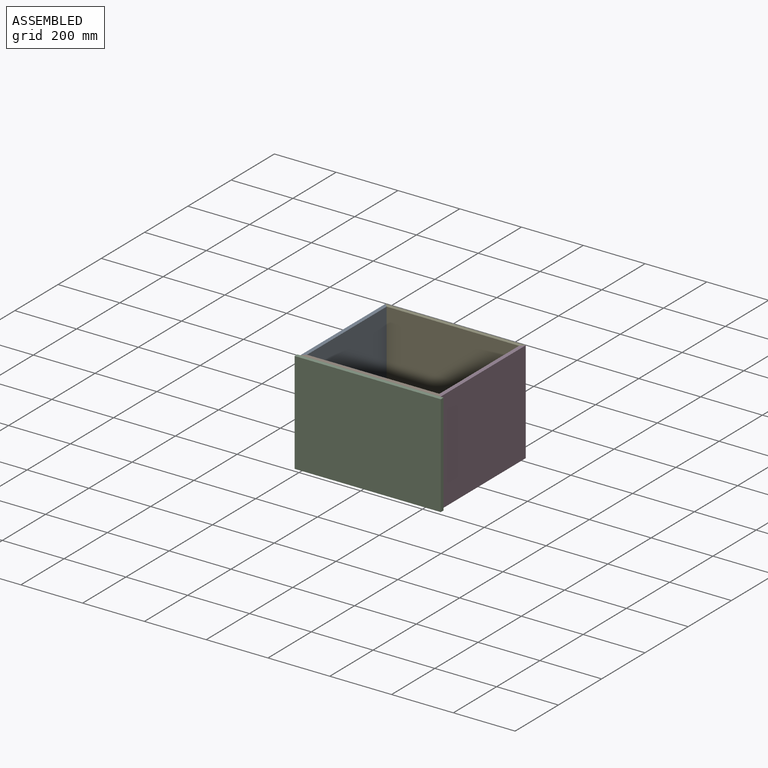
[diagram: assembled view]
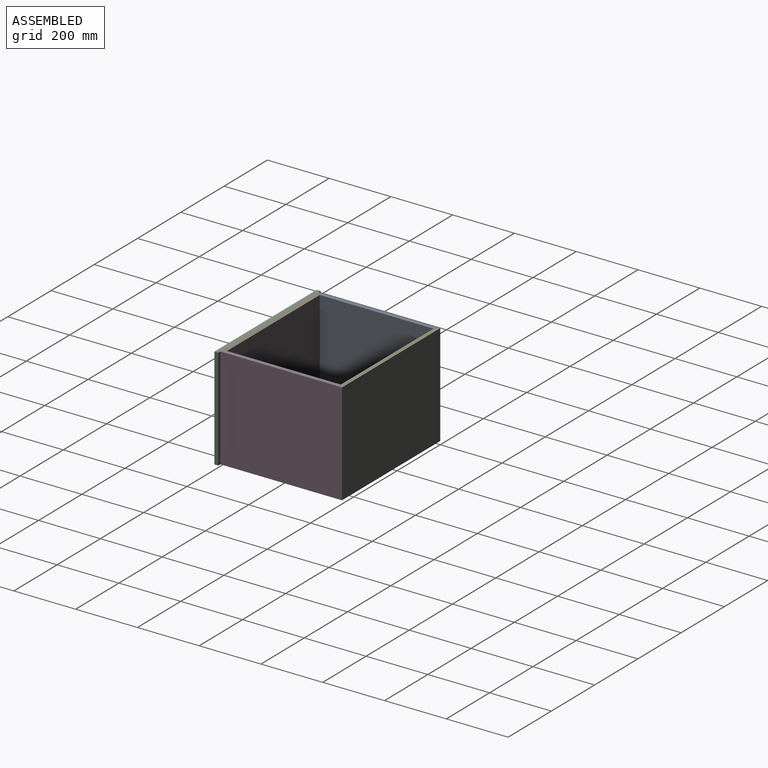
[diagram: assembled view, second angle]
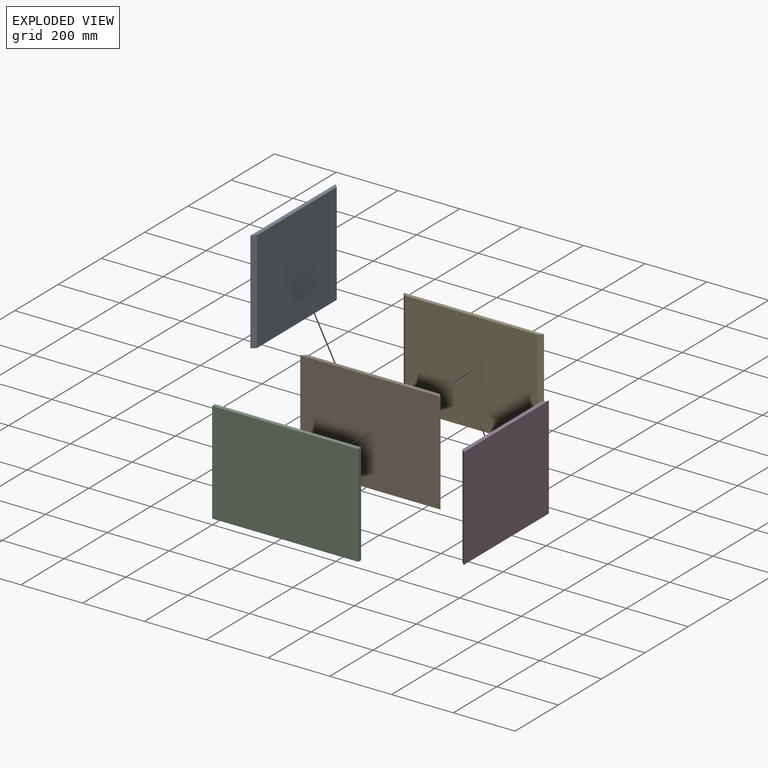
[diagram: exploded view]
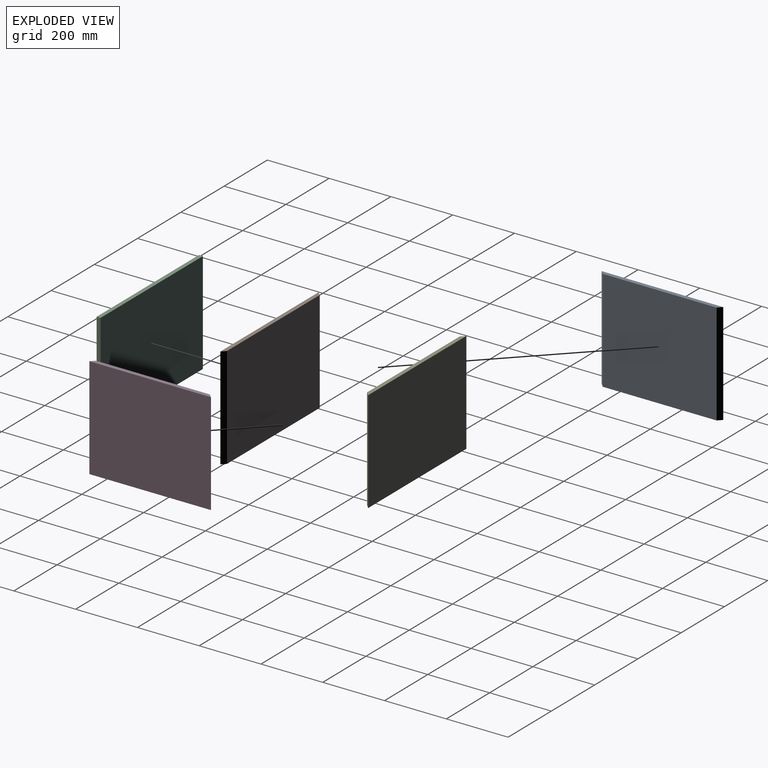
[diagram: exploded view, second angle]
ASSEMBLY  parts=5 mates=4
PART A: 6 faces, bbox 12.7x393.7x330.2 mm
  f0: plane 393.7x12.7mm, normal (0,0,1), area 4838.7mm2, adj f1,f3,f4,f5
  f1: plane 368.3x330.2mm, normal (-1,0,0), area 121612.7mm2, adj f0,f2,f4,f5
  f2: plane 393.7x12.7mm, normal (0,0,-1), area 4838.7mm2, adj f1,f3,f4,f5
  f3: plane 393.7x330.2mm, normal (1,0,0), area 129999.7mm2, adj f0,f2,f4,f5
  f4: plane 330.2x12.7mm, normal (-0.71,0.71,0), area 5930.6mm2, adj f0,f1,f2,f3
  f5: plane 330.2x12.7mm, normal (-0.71,-0.71,0), area 5930.6mm2, adj f0,f1,f2,f3
PART B: 6 faces, bbox 454x12.7x330.2 mm
  f0: plane 454.03x12.7mm, normal (0,0,1), area 5604.8mm2, adj f1,f3,f4,f5
  f1: plane 428.63x330.2mm, normal (0,-1,0), area 141532mm2, adj f0,f2,f4,f5
  f2: plane 454.03x12.7mm, normal (0,0,-1), area 5604.8mm2, adj f1,f3,f4,f5
  f3: plane 454.03x330.2mm, normal (0,1,0), area 149919.1mm2, adj f0,f2,f4,f5
  f4: plane 330.2x12.7mm, normal (-0.71,-0.71,0), area 5930.6mm2, adj f0,f1,f2,f3
  f5: plane 330.2x12.7mm, normal (0.71,-0.71,0), area 5930.6mm2, adj f0,f1,f2,f3
PART C: 6 faces, bbox 473.1x12.7x330.2 mm
  f0: plane 330.2x12.7mm, normal (-1,0,0), area 4193.5mm2, adj f1,f3,f4,f5
  f1: plane 473.08x12.7mm, normal (0,0,-1), area 6008.1mm2, adj f0,f2,f4,f5
  f2: plane 330.2x12.7mm, normal (1,0,0), area 4193.5mm2, adj f1,f3,f4,f5
  f3: plane 473.08x12.7mm, normal (0,0,1), area 6008.1mm2, adj f0,f2,f4,f5
  f4: plane 473.08x330.2mm, normal (0,-1,0), area 156209.4mm2, adj f0,f1,f2,f3
  f5: plane 473.08x330.2mm, normal (0,1,0), area 156209.4mm2, adj f0,f1,f2,f3
PART D: same geometry as A
PART E: same geometry as B
PLACE A rot(axis=(0,0,-1),180deg) t=(12.7,0,0)mm
PLACE B rot(axis=(0,0,-1),180deg) t=(454.03,-393.7,0)mm
PLACE C t=(-9.52,-393.7,0)mm
PLACE D t=(441.33,-393.7,0)mm
PLACE E at identity fixed
MATE fastened D.f4 <-> E.f5  axis (-0.71,0.71,0) through (447.68,-6.35,165.1)mm
MATE fastened B.f5 <-> A.f4  axis (-0.71,0.71,0) through (6.35,-387.35,165.1)mm
MATE fastened B.f3 <-> C.f5  axis (0,-1,0) through (227.01,-393.7,165.1)mm
MATE fastened E.f4 <-> A.f5  axis (-0.71,-0.71,0) through (6.35,-6.35,165.1)mm
